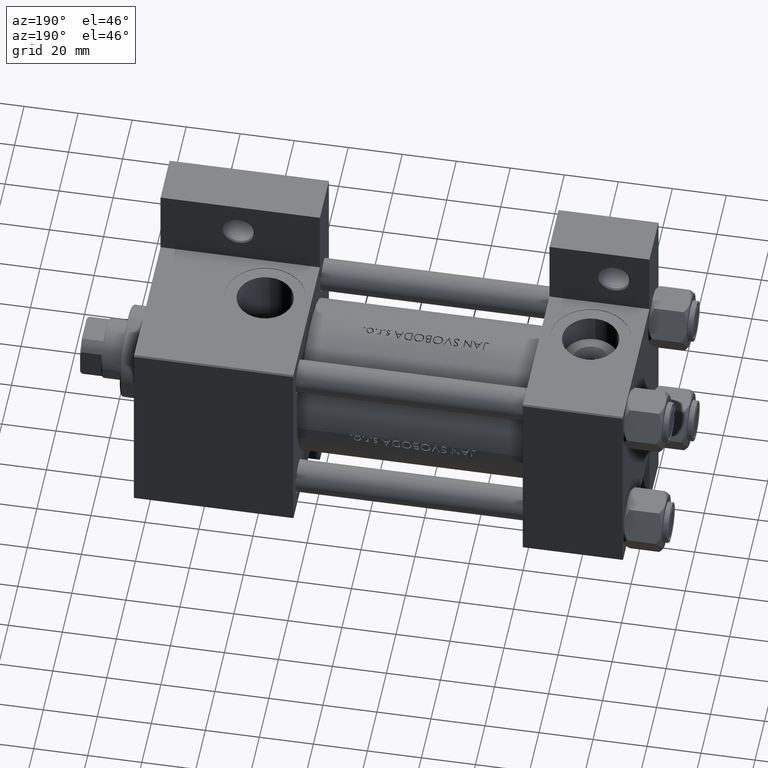
[diagram: clean part render]
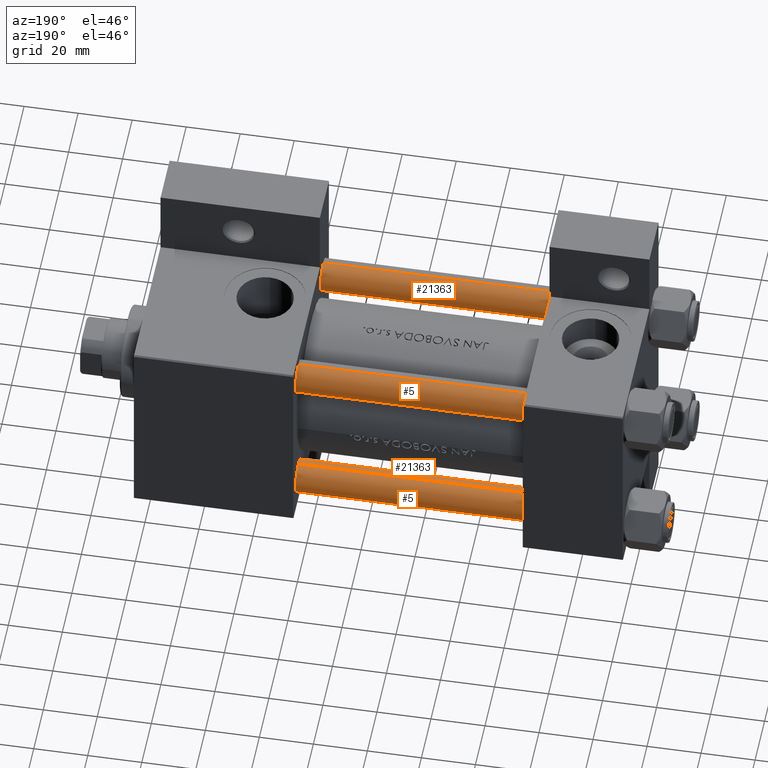
[diagram: same view with one multi-face feature highlighted, each face labeled with its STEP entity id]
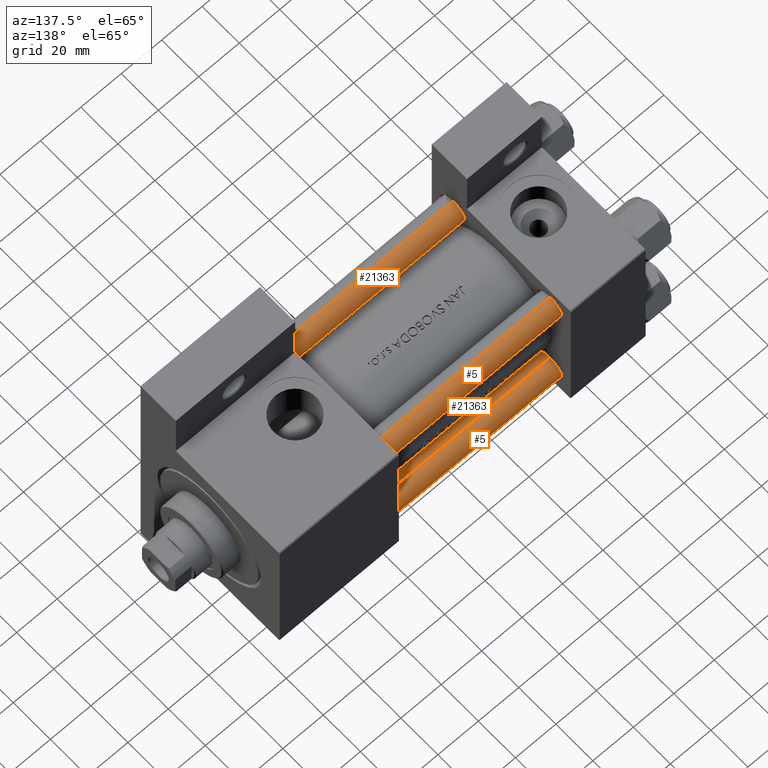
[diagram: same view with one multi-face feature highlighted, each face labeled with its STEP entity id]
A machine part, auxiliary view. The highlighted faces form ONE feature: a constant-radius fillet chain: 4 tangent blend faces with common blend radius 6 mm. The faces share edges in the B-rep.
A second angle (auxiliary view) of the same feature is appended — it is thin or edge-on in the first view.
Their STEP definitions:
[1] entity #5 (Cylinder):
#5 = ADVANCED_FACE ( 'NONE', ( #27594 ), #36284, .T. ) ;
#1430 = CARTESIAN_POINT ( 'NONE',  ( 0.000000000000000000, 0.000000000000000000, 151.0000000000000000 ) ) ;
#1875 = AXIS2_PLACEMENT_3D ( 'NONE', #6509, #6023, #5775 ) ;
#3467 = EDGE_CURVE ( 'NONE', #24083, #17991, #15011, .T. ) ;
#5775 = DIRECTION ( 'NONE',  ( 1.000000000000000000, 0.000000000000000000, 0.000000000000000000 ) ) ;
#6023 = DIRECTION ( 'NONE',  ( -0.000000000000000000, -0.000000000000000000, 1.000000000000000000 ) ) ;
#6509 = CARTESIAN_POINT ( 'NONE',  ( 0.000000000000000000, 0.000000000000000000, 0.5000000000000004441 ) ) ;
#7048 = CARTESIAN_POINT ( 'NONE',  ( 6.000000000000000888, 7.347880794884120722E-16, 150.5000000000000284 ) ) ;
#7091 = CIRCLE ( 'NONE', #10298, 6.000000000000000888 ) ;
#7406 = CIRCLE ( 'NONE', #1875, 6.000000000000000888 ) ;
#9062 = VECTOR ( 'NONE', #17384, 1000.000000000000000 ) ;
#9334 = VERTEX_POINT ( 'NONE', #13471 ) ;
#10199 = CARTESIAN_POINT ( 'NONE',  ( 0.000000000000000000, 0.000000000000000000, 150.5000000000000284 ) ) ;
#10298 = AXIS2_PLACEMENT_3D ( 'NONE', #10199, #21155, #36340 ) ;
#11073 = EDGE_CURVE ( 'NONE', #17991, #9334, #7406, .T. ) ;
#11728 = CARTESIAN_POINT ( 'NONE',  ( 6.000000000000000888, 7.347880794884120722E-16, 0.5000000000000004441 ) ) ;
#13471 = CARTESIAN_POINT ( 'NONE',  ( -6.000000000000000888, 0.000000000000000000, 0.5000000000000004441 ) ) ;
#15011 = LINE ( 'NONE', #25986, #33543 ) ;
#17384 = DIRECTION ( 'NONE',  ( -0.000000000000000000, -0.000000000000000000, -1.000000000000000000 ) ) ;
#17991 = VERTEX_POINT ( 'NONE', #11728 ) ;
#21115 = LINE ( 'NONE', #26494, #9062 ) ;
#21155 = DIRECTION ( 'NONE',  ( 0.000000000000000000, 0.000000000000000000, -1.000000000000000000 ) ) ;
#22361 = VERTEX_POINT ( 'NONE', #41029 ) ;
#22749 = ORIENTED_EDGE ( 'NONE', *, *, #28464, .T. ) ;
#24083 = VERTEX_POINT ( 'NONE', #7048 ) ;
#25986 = CARTESIAN_POINT ( 'NONE',  ( 6.000000000000000888, 7.347880794884120722E-16, 151.0000000000000000 ) ) ;
#26494 = CARTESIAN_POINT ( 'NONE',  ( -6.000000000000000888, 0.000000000000000000, 151.0000000000000000 ) ) ;
#27594 = FACE_OUTER_BOUND ( 'NONE', #41985, .T. ) ;
#28464 = EDGE_CURVE ( 'NONE', #22361, #24083, #7091, .T. ) ;
#30174 = ORIENTED_EDGE ( 'NONE', *, *, #34575, .F. ) ;
#31318 = DIRECTION ( 'NONE',  ( -0.000000000000000000, -0.000000000000000000, -1.000000000000000000 ) ) ;
#33543 = VECTOR ( 'NONE', #44913, 1000.000000000000000 ) ;
#34575 = EDGE_CURVE ( 'NONE', #22361, #9334, #21115, .T. ) ;
#35229 = ORIENTED_EDGE ( 'NONE', *, *, #3467, .T. ) ;
#36284 = CYLINDRICAL_SURFACE ( 'NONE', #46879, 6.000000000000000888 ) ;
#36340 = DIRECTION ( 'NONE',  ( 1.000000000000000000, 0.000000000000000000, 0.000000000000000000 ) ) ;
#39652 = ORIENTED_EDGE ( 'NONE', *, *, #11073, .T. ) ;
#41029 = CARTESIAN_POINT ( 'NONE',  ( -6.000000000000000888, 0.000000000000000000, 150.5000000000000284 ) ) ;
#41985 = EDGE_LOOP ( 'NONE', ( #22749, #35229, #39652, #30174 ) ) ;
#44913 = DIRECTION ( 'NONE',  ( -0.000000000000000000, -0.000000000000000000, -1.000000000000000000 ) ) ;
#46519 = DIRECTION ( 'NONE',  ( -1.000000000000000000, 0.000000000000000000, 0.000000000000000000 ) ) ;
#46879 = AXIS2_PLACEMENT_3D ( 'NONE', #1430, #31318, #46519 ) ;
[2] entity #21363 (Cylinder):
#881 = FACE_OUTER_BOUND ( 'NONE', #44089, .T. ) ;
#1126 = AXIS2_PLACEMENT_3D ( 'NONE', #29377, #33347, #14655 ) ;
#2064 = ORIENTED_EDGE ( 'NONE', *, *, #14291, .T. ) ;
#3467 = EDGE_CURVE ( 'NONE', #24083, #17991, #15011, .T. ) ;
#4318 = ORIENTED_EDGE ( 'NONE', *, *, #35228, .T. ) ;
#4631 = DIRECTION ( 'NONE',  ( -0.000000000000000000, -0.000000000000000000, -1.000000000000000000 ) ) ;
#5113 = DIRECTION ( 'NONE',  ( -1.000000000000000000, 0.000000000000000000, 0.000000000000000000 ) ) ;
#7048 = CARTESIAN_POINT ( 'NONE',  ( 6.000000000000000888, 7.347880794884120722E-16, 150.5000000000000284 ) ) ;
#7684 = ORIENTED_EDGE ( 'NONE', *, *, #3467, .F. ) ;
#9062 = VECTOR ( 'NONE', #17384, 1000.000000000000000 ) ;
#9130 = AXIS2_PLACEMENT_3D ( 'NONE', #31652, #20441, #28909 ) ;
#9334 = VERTEX_POINT ( 'NONE', #13471 ) ;
#9525 = ORIENTED_EDGE ( 'NONE', *, *, #34575, .T. ) ;
#11728 = CARTESIAN_POINT ( 'NONE',  ( 6.000000000000000888, 7.347880794884120722E-16, 0.5000000000000004441 ) ) ;
#13471 = CARTESIAN_POINT ( 'NONE',  ( -6.000000000000000888, 0.000000000000000000, 0.5000000000000004441 ) ) ;
#14291 = EDGE_CURVE ( 'NONE', #24083, #22361, #35360, .T. ) ;
#14655 = DIRECTION ( 'NONE',  ( 1.000000000000000000, 0.000000000000000000, 0.000000000000000000 ) ) ;
#15011 = LINE ( 'NONE', #25986, #33543 ) ;
#16078 = CYLINDRICAL_SURFACE ( 'NONE', #29111, 6.000000000000000888 ) ;
#17384 = DIRECTION ( 'NONE',  ( -0.000000000000000000, -0.000000000000000000, -1.000000000000000000 ) ) ;
#17991 = VERTEX_POINT ( 'NONE', #11728 ) ;
#20441 = DIRECTION ( 'NONE',  ( 0.000000000000000000, 0.000000000000000000, -1.000000000000000000 ) ) ;
#21115 = LINE ( 'NONE', #26494, #9062 ) ;
#21363 = ADVANCED_FACE ( 'NONE', ( #881 ), #16078, .T. ) ;
#22361 = VERTEX_POINT ( 'NONE', #41029 ) ;
#23299 = CARTESIAN_POINT ( 'NONE',  ( 0.000000000000000000, 0.000000000000000000, 151.0000000000000000 ) ) ;
#24083 = VERTEX_POINT ( 'NONE', #7048 ) ;
#25986 = CARTESIAN_POINT ( 'NONE',  ( 6.000000000000000888, 7.347880794884120722E-16, 151.0000000000000000 ) ) ;
#26494 = CARTESIAN_POINT ( 'NONE',  ( -6.000000000000000888, 0.000000000000000000, 151.0000000000000000 ) ) ;
#28909 = DIRECTION ( 'NONE',  ( 1.000000000000000000, 0.000000000000000000, 0.000000000000000000 ) ) ;
#29111 = AXIS2_PLACEMENT_3D ( 'NONE', #23299, #4631, #5113 ) ;
#29377 = CARTESIAN_POINT ( 'NONE',  ( 0.000000000000000000, 0.000000000000000000, 0.5000000000000004441 ) ) ;
#31652 = CARTESIAN_POINT ( 'NONE',  ( 0.000000000000000000, 0.000000000000000000, 150.5000000000000284 ) ) ;
#32129 = CIRCLE ( 'NONE', #1126, 6.000000000000000888 ) ;
#33347 = DIRECTION ( 'NONE',  ( -0.000000000000000000, -0.000000000000000000, 1.000000000000000000 ) ) ;
#33543 = VECTOR ( 'NONE', #44913, 1000.000000000000000 ) ;
#34575 = EDGE_CURVE ( 'NONE', #22361, #9334, #21115, .T. ) ;
#35228 = EDGE_CURVE ( 'NONE', #9334, #17991, #32129, .T. ) ;
#35360 = CIRCLE ( 'NONE', #9130, 6.000000000000000888 ) ;
#41029 = CARTESIAN_POINT ( 'NONE',  ( -6.000000000000000888, 0.000000000000000000, 150.5000000000000284 ) ) ;
#44089 = EDGE_LOOP ( 'NONE', ( #7684, #2064, #9525, #4318 ) ) ;
#44913 = DIRECTION ( 'NONE',  ( -0.000000000000000000, -0.000000000000000000, -1.000000000000000000 ) ) ;
[3] entity #5 (Cylinder):
#5 = ADVANCED_FACE ( 'NONE', ( #27594 ), #36284, .T. ) ;
#1430 = CARTESIAN_POINT ( 'NONE',  ( 0.000000000000000000, 0.000000000000000000, 151.0000000000000000 ) ) ;
#1875 = AXIS2_PLACEMENT_3D ( 'NONE', #6509, #6023, #5775 ) ;
#3467 = EDGE_CURVE ( 'NONE', #24083, #17991, #15011, .T. ) ;
#5775 = DIRECTION ( 'NONE',  ( 1.000000000000000000, 0.000000000000000000, 0.000000000000000000 ) ) ;
#6023 = DIRECTION ( 'NONE',  ( -0.000000000000000000, -0.000000000000000000, 1.000000000000000000 ) ) ;
#6509 = CARTESIAN_POINT ( 'NONE',  ( 0.000000000000000000, 0.000000000000000000, 0.5000000000000004441 ) ) ;
#7048 = CARTESIAN_POINT ( 'NONE',  ( 6.000000000000000888, 7.347880794884120722E-16, 150.5000000000000284 ) ) ;
#7091 = CIRCLE ( 'NONE', #10298, 6.000000000000000888 ) ;
#7406 = CIRCLE ( 'NONE', #1875, 6.000000000000000888 ) ;
#9062 = VECTOR ( 'NONE', #17384, 1000.000000000000000 ) ;
#9334 = VERTEX_POINT ( 'NONE', #13471 ) ;
#10199 = CARTESIAN_POINT ( 'NONE',  ( 0.000000000000000000, 0.000000000000000000, 150.5000000000000284 ) ) ;
#10298 = AXIS2_PLACEMENT_3D ( 'NONE', #10199, #21155, #36340 ) ;
#11073 = EDGE_CURVE ( 'NONE', #17991, #9334, #7406, .T. ) ;
#11728 = CARTESIAN_POINT ( 'NONE',  ( 6.000000000000000888, 7.347880794884120722E-16, 0.5000000000000004441 ) ) ;
#13471 = CARTESIAN_POINT ( 'NONE',  ( -6.000000000000000888, 0.000000000000000000, 0.5000000000000004441 ) ) ;
#15011 = LINE ( 'NONE', #25986, #33543 ) ;
#17384 = DIRECTION ( 'NONE',  ( -0.000000000000000000, -0.000000000000000000, -1.000000000000000000 ) ) ;
#17991 = VERTEX_POINT ( 'NONE', #11728 ) ;
#21115 = LINE ( 'NONE', #26494, #9062 ) ;
#21155 = DIRECTION ( 'NONE',  ( 0.000000000000000000, 0.000000000000000000, -1.000000000000000000 ) ) ;
#22361 = VERTEX_POINT ( 'NONE', #41029 ) ;
#22749 = ORIENTED_EDGE ( 'NONE', *, *, #28464, .T. ) ;
#24083 = VERTEX_POINT ( 'NONE', #7048 ) ;
#25986 = CARTESIAN_POINT ( 'NONE',  ( 6.000000000000000888, 7.347880794884120722E-16, 151.0000000000000000 ) ) ;
#26494 = CARTESIAN_POINT ( 'NONE',  ( -6.000000000000000888, 0.000000000000000000, 151.0000000000000000 ) ) ;
#27594 = FACE_OUTER_BOUND ( 'NONE', #41985, .T. ) ;
#28464 = EDGE_CURVE ( 'NONE', #22361, #24083, #7091, .T. ) ;
#30174 = ORIENTED_EDGE ( 'NONE', *, *, #34575, .F. ) ;
#31318 = DIRECTION ( 'NONE',  ( -0.000000000000000000, -0.000000000000000000, -1.000000000000000000 ) ) ;
#33543 = VECTOR ( 'NONE', #44913, 1000.000000000000000 ) ;
#34575 = EDGE_CURVE ( 'NONE', #22361, #9334, #21115, .T. ) ;
#35229 = ORIENTED_EDGE ( 'NONE', *, *, #3467, .T. ) ;
#36284 = CYLINDRICAL_SURFACE ( 'NONE', #46879, 6.000000000000000888 ) ;
#36340 = DIRECTION ( 'NONE',  ( 1.000000000000000000, 0.000000000000000000, 0.000000000000000000 ) ) ;
#39652 = ORIENTED_EDGE ( 'NONE', *, *, #11073, .T. ) ;
#41029 = CARTESIAN_POINT ( 'NONE',  ( -6.000000000000000888, 0.000000000000000000, 150.5000000000000284 ) ) ;
#41985 = EDGE_LOOP ( 'NONE', ( #22749, #35229, #39652, #30174 ) ) ;
#44913 = DIRECTION ( 'NONE',  ( -0.000000000000000000, -0.000000000000000000, -1.000000000000000000 ) ) ;
#46519 = DIRECTION ( 'NONE',  ( -1.000000000000000000, 0.000000000000000000, 0.000000000000000000 ) ) ;
#46879 = AXIS2_PLACEMENT_3D ( 'NONE', #1430, #31318, #46519 ) ;
[4] entity #21363 (Cylinder):
#881 = FACE_OUTER_BOUND ( 'NONE', #44089, .T. ) ;
#1126 = AXIS2_PLACEMENT_3D ( 'NONE', #29377, #33347, #14655 ) ;
#2064 = ORIENTED_EDGE ( 'NONE', *, *, #14291, .T. ) ;
#3467 = EDGE_CURVE ( 'NONE', #24083, #17991, #15011, .T. ) ;
#4318 = ORIENTED_EDGE ( 'NONE', *, *, #35228, .T. ) ;
#4631 = DIRECTION ( 'NONE',  ( -0.000000000000000000, -0.000000000000000000, -1.000000000000000000 ) ) ;
#5113 = DIRECTION ( 'NONE',  ( -1.000000000000000000, 0.000000000000000000, 0.000000000000000000 ) ) ;
#7048 = CARTESIAN_POINT ( 'NONE',  ( 6.000000000000000888, 7.347880794884120722E-16, 150.5000000000000284 ) ) ;
#7684 = ORIENTED_EDGE ( 'NONE', *, *, #3467, .F. ) ;
#9062 = VECTOR ( 'NONE', #17384, 1000.000000000000000 ) ;
#9130 = AXIS2_PLACEMENT_3D ( 'NONE', #31652, #20441, #28909 ) ;
#9334 = VERTEX_POINT ( 'NONE', #13471 ) ;
#9525 = ORIENTED_EDGE ( 'NONE', *, *, #34575, .T. ) ;
#11728 = CARTESIAN_POINT ( 'NONE',  ( 6.000000000000000888, 7.347880794884120722E-16, 0.5000000000000004441 ) ) ;
#13471 = CARTESIAN_POINT ( 'NONE',  ( -6.000000000000000888, 0.000000000000000000, 0.5000000000000004441 ) ) ;
#14291 = EDGE_CURVE ( 'NONE', #24083, #22361, #35360, .T. ) ;
#14655 = DIRECTION ( 'NONE',  ( 1.000000000000000000, 0.000000000000000000, 0.000000000000000000 ) ) ;
#15011 = LINE ( 'NONE', #25986, #33543 ) ;
#16078 = CYLINDRICAL_SURFACE ( 'NONE', #29111, 6.000000000000000888 ) ;
#17384 = DIRECTION ( 'NONE',  ( -0.000000000000000000, -0.000000000000000000, -1.000000000000000000 ) ) ;
#17991 = VERTEX_POINT ( 'NONE', #11728 ) ;
#20441 = DIRECTION ( 'NONE',  ( 0.000000000000000000, 0.000000000000000000, -1.000000000000000000 ) ) ;
#21115 = LINE ( 'NONE', #26494, #9062 ) ;
#21363 = ADVANCED_FACE ( 'NONE', ( #881 ), #16078, .T. ) ;
#22361 = VERTEX_POINT ( 'NONE', #41029 ) ;
#23299 = CARTESIAN_POINT ( 'NONE',  ( 0.000000000000000000, 0.000000000000000000, 151.0000000000000000 ) ) ;
#24083 = VERTEX_POINT ( 'NONE', #7048 ) ;
#25986 = CARTESIAN_POINT ( 'NONE',  ( 6.000000000000000888, 7.347880794884120722E-16, 151.0000000000000000 ) ) ;
#26494 = CARTESIAN_POINT ( 'NONE',  ( -6.000000000000000888, 0.000000000000000000, 151.0000000000000000 ) ) ;
#28909 = DIRECTION ( 'NONE',  ( 1.000000000000000000, 0.000000000000000000, 0.000000000000000000 ) ) ;
#29111 = AXIS2_PLACEMENT_3D ( 'NONE', #23299, #4631, #5113 ) ;
#29377 = CARTESIAN_POINT ( 'NONE',  ( 0.000000000000000000, 0.000000000000000000, 0.5000000000000004441 ) ) ;
#31652 = CARTESIAN_POINT ( 'NONE',  ( 0.000000000000000000, 0.000000000000000000, 150.5000000000000284 ) ) ;
#32129 = CIRCLE ( 'NONE', #1126, 6.000000000000000888 ) ;
#33347 = DIRECTION ( 'NONE',  ( -0.000000000000000000, -0.000000000000000000, 1.000000000000000000 ) ) ;
#33543 = VECTOR ( 'NONE', #44913, 1000.000000000000000 ) ;
#34575 = EDGE_CURVE ( 'NONE', #22361, #9334, #21115, .T. ) ;
#35228 = EDGE_CURVE ( 'NONE', #9334, #17991, #32129, .T. ) ;
#35360 = CIRCLE ( 'NONE', #9130, 6.000000000000000888 ) ;
#41029 = CARTESIAN_POINT ( 'NONE',  ( -6.000000000000000888, 0.000000000000000000, 150.5000000000000284 ) ) ;
#44089 = EDGE_LOOP ( 'NONE', ( #7684, #2064, #9525, #4318 ) ) ;
#44913 = DIRECTION ( 'NONE',  ( -0.000000000000000000, -0.000000000000000000, -1.000000000000000000 ) ) ;